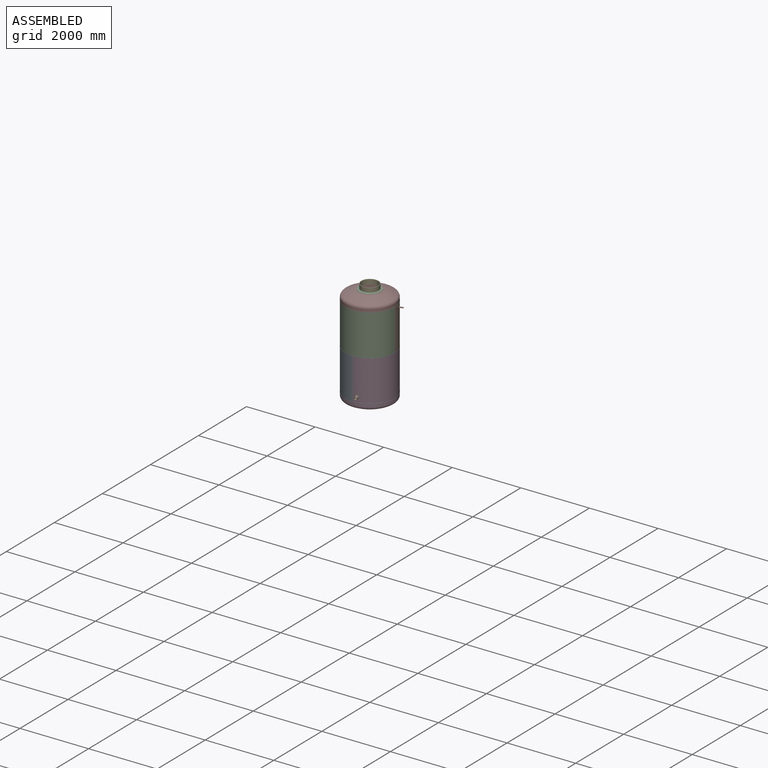
[diagram: assembled view]
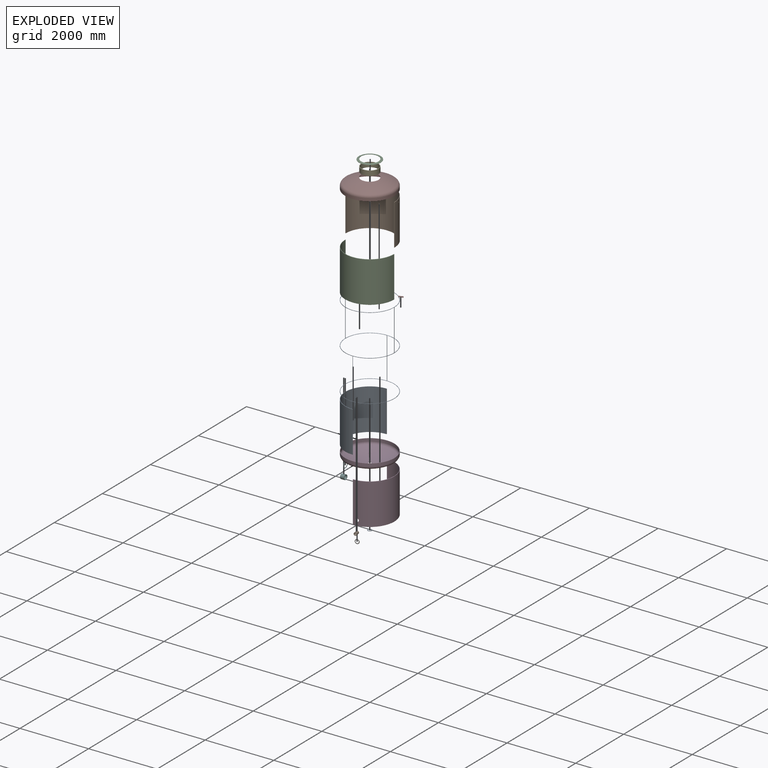
[diagram: exploded view]
GUIDED TOUR — MATED ASSEMBLY (Onshape document a2e5726da53a341ddfec77fb, AutoMate assembly a2e5726da53a341ddfec77fb_6807a62d554a02c38ec45782_9c263113b75342d83c172a72_default)

This assembly has 18 components, labeled P0..P17 below (a component is one placed occurrence of a part; the same part can appear more than once), held together by 17 mates. A mate is a constraint between two components; its type names the relative motion it leaves free:
  FASTENED — locks the two components together rigidly (no relative motion).
Axis/direction vectors are unit vectors and 'through' points are millimeter coordinates, both in the assembly's world frame.

MATES
  1. FASTENED "Fastened 3": P13 <-> P0, direction (0.000, 0.000, 1.000) through (-706.00, 0.03, -980.85) mm
  2. FASTENED "Fastened 14": P3 <-> P8, direction (0.000, 0.000, 1.000) through (0.00, 0.00, -1204.50) mm
  3. FASTENED "Fastened 9": P17 <-> P9, direction (0.000, 0.000, 1.000) through (-671.29, 218.63, 1101.51) mm
  4. FASTENED "Fastened 8": P12 <-> P9, direction (0.000, 0.000, 1.000) through (0.01, 706.00, 1069.85) mm
  5. FASTENED "Fastened 10": P7 <-> P9, direction (0.000, 0.000, 1.000) through (657.53, 257.09, 1101.51) mm
  6. FASTENED "Fastened 2": P5 <-> P0, direction (0.000, 0.000, 1.000) through (-716.00, 0.03, -980.85) mm
  7. FASTENED "Fastened 4": P11 <-> P8, direction (0.000, 0.000, 1.000) through (1.50, -706.00, -1.50) mm
  8. FASTENED "Fastened 7": P2 <-> P8, direction (0.000, 0.000, 1.000) through (706.00, -1.50, 1201.50) mm
  9. FASTENED "Fastened 15": P10 <-> P15, direction (0.000, 0.000, 1.000) through (0.00, 0.00, 1510.33) mm
  10. FASTENED "Fastened 1": P0 <-> P8, direction (0.000, 0.000, 1.000) through (-1.50, -706.00, -1.50) mm
  11. FASTENED "Fastened 6": P1 <-> P11, direction (0.000, 0.000, 1.000) through (166.13, -686.18, -1051.48) mm
  12. FASTENED "Fastened 11": P9 <-> P8, direction (0.000, 0.000, 1.000) through (706.00, 1.50, 1201.50) mm
  13. FASTENED "Fastened 16": P4 <-> P15, direction (0.000, 0.000, -1.000) through (0.00, 0.00, 1500.17) mm
  14. FASTENED "Fastened 17": P15 <-> P8, direction (0.000, 0.000, -1.000) through (0.00, 0.00, 1204.50) mm
  15. FASTENED "Fastened 5": P14 <-> P11, direction (0.000, 0.000, 1.000) through (167.87, -696.04, -1051.48) mm
  16. FASTENED "Fastened 13": P6 <-> P3, direction (0.000, 0.000, 1.000) through (0.00, 0.00, -1522.34) mm
  17. FASTENED "Fastened 12": P16 <-> P3, direction (0.000, 0.000, -1.000) through (0.00, 0.00, -1532.35) mm

ASSEMBLY ORDER
  1. P8 — the base component [order verified]
  2. P2 [order verified]
  3. P11 [order verified]
  4. P0 [order verified]
  5. P9 [order verified]
  6. P5 [order verified]
  7. P17 [order verified]
  8. P13 [order verified]
  9. P7 [order verified]
  10. P14 [order verified]
  11. P1 [order verified]
  12. P15 [order verified]
  13. P3 [order verified]
  14. P10 [order verified]
  15. P16 [order verified]
  16. P4 [order verified]
  17. P6 [order verified]
  18. P12 [order verified]
Order-tag legend:
  [order verified] — this step's position reverses a verified removal order: the component was checked to insert without passing through the ones already placed.

Of the 18 components, 1 carries the full construction recipe — the FeatureScript program that regenerates the part's solid from scratch; the rest are supplied as boundary geometry only.
Because this assembly has more than 12 components, the tour below covers the 12 most significant ones individually (every recipe-attached component first, then the largest by part volume), in assembly order; the remaining 6 are summarized together in a grouped section at the end.
Each toured component is shown spotlighted twice — in the assembled view, then in the exploded view, where a leader line traces a displaced component back to its assembled socket (saturated green if recipe-attached, orange if geometry-only; every other component desaturated gray) — followed by its recipe or geometry summary and the mates that hold it.
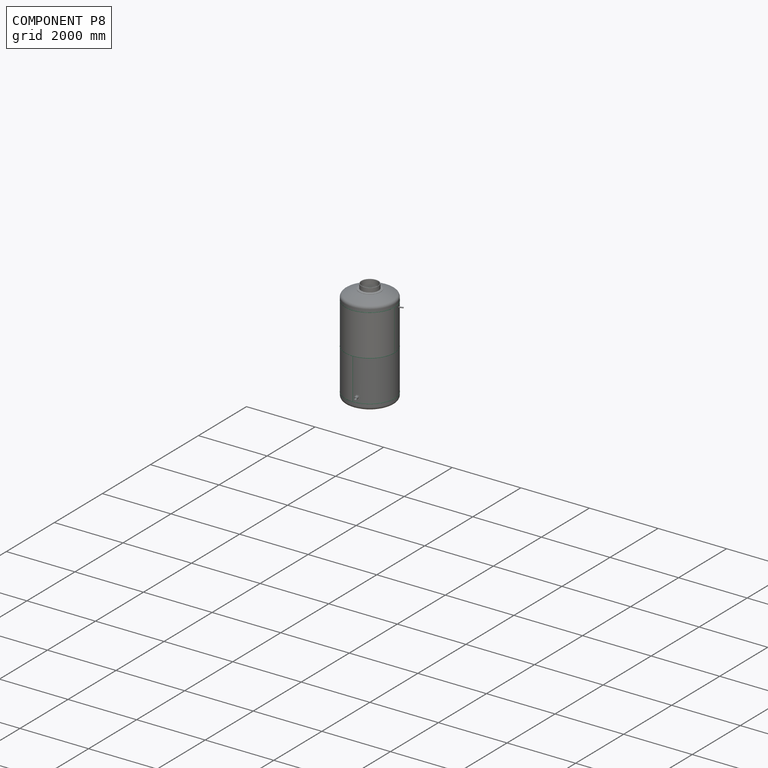
[diagram: component P8 — assembled]
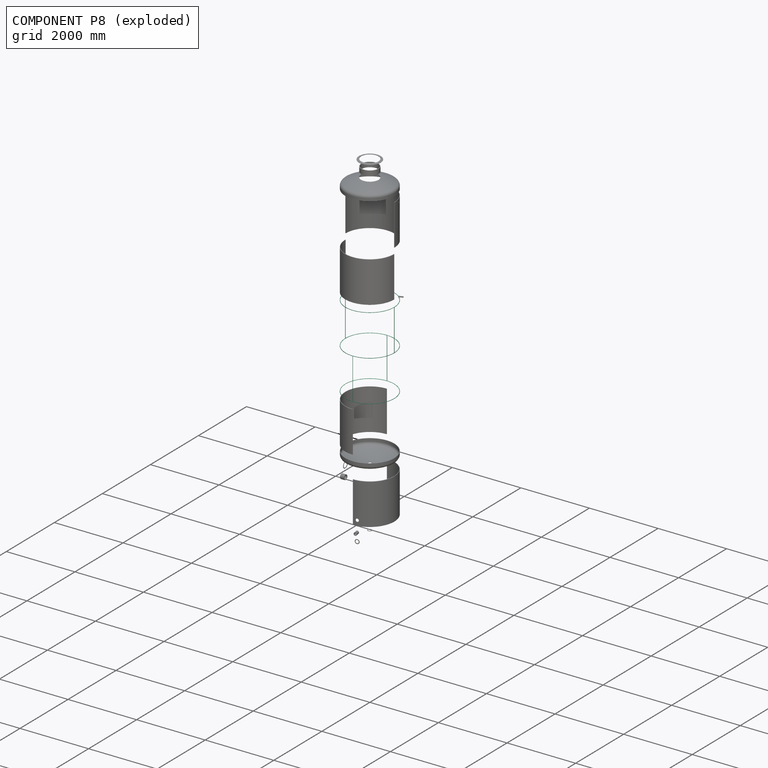
[diagram: component P8 — exploded]
COMPONENT P8 — recipe-attached (CADFS 00385852, mesh-verified: the recipe's output STEP matches this component's geometry to below the mesh-comparison resolution (tessellation chordal tolerance ~4.74 mm)).
Held by: FASTENED mate "Fastened 14" to P3; FASTENED mate "Fastened 4" to P11; FASTENED mate "Fastened 7" to P2; FASTENED mate "Fastened 1" to P0; FASTENED mate "Fastened 11" to P9; FASTENED mate "Fastened 17" to P15.
Construction recipe (FeatureScript — the CAD program that rebuilds this solid; sketch coordinates are in the units given by the * unit suffixes, e.g. mm):

FeatureScript 1511;
import(path : "onshape/std/geometry.fs", version : "1511.0");
import(path : "onshape/std/common.fs", version : "1511.0");
const mm = millimeter;
const VERTEX = EntityType.VERTEX;
const EDGE = EntityType.EDGE;
const FACE = EntityType.FACE;
const BODY = EntityType.BODY;
function v(x, y){return vector(x, y);}
function OD(order){return orderDisambiguation(order);}
function OSD(set){return originalSetDisambiguation(set);}
function TD(topology){return topologyDisambiguation(topology);}
function TDD(query){return trueDependencyDisambiguation(query);}
function sQuery(a, b, c) {return sketchEntityQuery(a, b, c);}

annotation { "Feature Type Name" : "Feature", "Feature Type Description" : "" }
export const myFeature = defineFeature(function(context is Context, id is Id, definition is map)
    precondition{}
    {
        {
            var Q0;
            Q0=qCreatedBy(makeId("Front.planeOp"),FACE);
            var sketch = newSketch(context, id + "F0", { "sketchPlane" : qUnion([Q0])});
            skLineSegment(sketch, "E0", {"start": v(0, 0) * mm, "end": v(716, 0) * mm, "construction": true});
            skLineSegment(sketch, "E1", {"start": v(0, 0) * mm, "end": v(0, 347.59) * mm, "construction": true});
            skLineSegment(sketch, "E2", {"start": v(706, 1.5) * mm, "end": v(706, -1.5) * mm});
            skLineSegment(sketch, "E3", {"start": v(706, 1.5) * mm, "end": v(709, 1.5) * mm});
            skLineSegment(sketch, "E4", {"start": v(709, 1.5) * mm, "end": v(716, 5.54) * mm});
            skLineSegment(sketch, "E5", {"start": v(716, 0) * mm, "end": v(716, 5.54) * mm, "construction": true});
            skLineSegment(sketch, "E6", {"start": v(716, 0) * mm, "end": v(719, 0) * mm, "construction": true});
            skLineSegment(sketch, "E7.MirrorCS", {"start": v(706, -1.5) * mm, "end": v(709, -1.5) * mm});
            skLineSegment(sketch, "E8.MirrorCS", {"start": v(709, -1.5) * mm, "end": v(716, -5.54) * mm});
            skArc(sketch, "E9", {"start": v(716, -5.54) * mm, "mid": v(719, 0) * mm, "end": v(716, 5.54) * mm});
            skLineSegment(sketch, "E10.0.1.0", {"start": v(709, 1204.5) * mm, "end": v(716, 1208.54) * mm});
            skLineSegment(sketch, "E10.0.1.1", {"start": v(706, 1204.5) * mm, "end": v(709, 1204.5) * mm});
            skLineSegment(sketch, "E10.0.1.2", {"start": v(706, 1204.5) * mm, "end": v(706, 1201.5) * mm});
            skLineSegment(sketch, "E10.0.1.3", {"start": v(706, 1201.5) * mm, "end": v(709, 1201.5) * mm});
            skLineSegment(sketch, "E10.0.1.4", {"start": v(709, 1201.5) * mm, "end": v(716, 1197.46) * mm});
            skArc(sketch, "E10.0.1.5", {"start": v(716, 1197.46) * mm, "mid": v(719, 1203) * mm, "end": v(716, 1208.54) * mm});
            skLineSegment(sketch, "E10.direction1", {"start": v(709, 1.5) * mm, "end": v(734, 1.5) * mm, "construction": true});
            skLineSegment(sketch, "E10.direction2", {"start": v(709, 1.5) * mm, "end": v(709, 1204.5) * mm, "construction": true});
            skLineSegment(sketch, "E11.MirrorCS", {"start": v(706, -1201.5) * mm, "end": v(709, -1201.5) * mm});
            skLineSegment(sketch, "E12.MirrorCS", {"start": v(709, -1201.5) * mm, "end": v(716, -1197.46) * mm});
            skLineSegment(sketch, "E13.MirrorCS", {"start": v(706, -1204.5) * mm, "end": v(709, -1204.5) * mm});
            skLineSegment(sketch, "E14.MirrorCS", {"start": v(706, -1204.5) * mm, "end": v(706, -1201.5) * mm});
            skLineSegment(sketch, "E15.MirrorCS", {"start": v(709, -1204.5) * mm, "end": v(716, -1208.54) * mm});
            skArc(sketch, "E16.MirrorCS", {"start": v(716, -1197.46) * mm, "mid": v(719, -1203) * mm, "end": v(716, -1208.54) * mm});
            skSolve(sketch);
        }
        {
            var Q0;
            Q0 = qSketchRegion(id + "F0", true);
            var Q1;
            Q1=sQuery(id+"F0.wireOp",EDGE,"E1");
            revolve(context, id + "F1", {"entities" : qUnion([Q0]), "axis" : qUnion([Q1]), "revolveType" : RevolveType.FULL});
        }
        {
            var Q0;
            Q0=qCreatedBy(makeId("Top.planeOp"),FACE);
            var sketch = newSketch(context, id + "F2", { "sketchPlane" : qUnion([Q0])});
            skLineSegment(sketch, "E17", {"start": v(0, 0) * mm, "end": v(0, 716) * mm, "construction": true});
            skLineSegment(sketch, "E18", {"start": v(-1.5, 706) * mm, "end": v(1.5, 706) * mm});
            skLineSegment(sketch, "E19", {"start": v(-1.5, 706) * mm, "end": v(-1.5, 709) * mm});
            skLineSegment(sketch, "E20", {"start": v(-1.5, 709) * mm, "end": v(-5.54, 716) * mm});
            skLineSegment(sketch, "E21", {"start": v(0, 716) * mm, "end": v(-5.54, 716) * mm, "construction": true});
            skLineSegment(sketch, "E22.MirrorCS", {"start": v(1.5, 706) * mm, "end": v(1.5, 709) * mm});
            skLineSegment(sketch, "E23.MirrorCS", {"start": v(1.5, 709) * mm, "end": v(5.54, 716) * mm});
            skLineSegment(sketch, "E24", {"start": v(0, 716) * mm, "end": v(0, 719) * mm, "construction": true});
            skArc(sketch, "E25", {"start": v(5.54, 716) * mm, "mid": v(0, 719) * mm, "end": v(-5.54, 716) * mm});
            skArc(sketch, "E26.1.0", {"start": v(-716, 5.54) * mm, "mid": v(-719, 0) * mm, "end": v(-716, -5.54) * mm});
            skLineSegment(sketch, "E26.1.1", {"start": v(-709, -1.5) * mm, "end": v(-716, -5.54) * mm});
            skLineSegment(sketch, "E26.1.2", {"start": v(-709, 1.5) * mm, "end": v(-716, 5.54) * mm});
            skLineSegment(sketch, "E26.1.3", {"start": v(-706, 1.5) * mm, "end": v(-709, 1.5) * mm});
            skLineSegment(sketch, "E26.1.4", {"start": v(-706, -1.5) * mm, "end": v(-709, -1.5) * mm});
            skLineSegment(sketch, "E26.1.5", {"start": v(-706, -1.5) * mm, "end": v(-706, 1.5) * mm});
            skArc(sketch, "E26.2.0", {"start": v(-5.54, -716) * mm, "mid": v(0, -719) * mm, "end": v(5.54, -716) * mm});
            skLineSegment(sketch, "E26.2.1", {"start": v(1.5, -709) * mm, "end": v(5.54, -716) * mm});
            skLineSegment(sketch, "E26.2.2", {"start": v(-1.5, -709) * mm, "end": v(-5.54, -716) * mm});
            skLineSegment(sketch, "E26.2.3", {"start": v(-1.5, -706) * mm, "end": v(-1.5, -709) * mm});
            skLineSegment(sketch, "E26.2.4", {"start": v(1.5, -706) * mm, "end": v(1.5, -709) * mm});
            skLineSegment(sketch, "E26.2.5", {"start": v(1.5, -706) * mm, "end": v(-1.5, -706) * mm});
            skArc(sketch, "E26.3.0", {"start": v(716, -5.54) * mm, "mid": v(719, 0) * mm, "end": v(716, 5.54) * mm});
            skLineSegment(sketch, "E26.3.1", {"start": v(709, 1.5) * mm, "end": v(716, 5.54) * mm});
            skLineSegment(sketch, "E26.3.2", {"start": v(709, -1.5) * mm, "end": v(716, -5.54) * mm});
            skLineSegment(sketch, "E26.3.3", {"start": v(706, -1.5) * mm, "end": v(709, -1.5) * mm});
            skLineSegment(sketch, "E26.3.4", {"start": v(706, 1.5) * mm, "end": v(709, 1.5) * mm});
            skLineSegment(sketch, "E26.3.5", {"start": v(706, 1.5) * mm, "end": v(706, -1.5) * mm});
            skPoint(sketch, "E26.center", {"position": v(0, 0) * mm});
            skSolve(sketch);
        }
        {
            var Q0;
            Q0=makeQuery(id+"F2.imprint","IMPRINT",FACE,{"disambiguationData":[TD([[makeQuery(id+"F2.imprint","IMPRINT",EDGE,{"derivedFrom":sQuery(id+"F2.wireOp",EDGE,"E26.2.0")}),1.0]])]});
            var Q1;
            Q1=makeQuery(id+"F2.imprint","IMPRINT",FACE,{"disambiguationData":[TD([[makeQuery(id+"F2.imprint","IMPRINT",EDGE,{"derivedFrom":sQuery(id+"F2.wireOp",EDGE,"E18")}),1.0]])]});
            extrude(context, id + "F3", {"entities" : qUnion([Q0, Q1]), "operationType" : NewBodyOperationType.ADD, "oppositeDirection" : true, "depth" : 1203 * mm});
        }
        {
            var Q0;
            Q0=makeQuery(id+"F2.imprint","IMPRINT",FACE,{"disambiguationData":[TD([[makeQuery(id+"F2.imprint","IMPRINT",EDGE,{"derivedFrom":sQuery(id+"F2.wireOp",EDGE,"E26.1.0")}),1.0]])]});
            var Q1;
            Q1=makeQuery(id+"F2.imprint","IMPRINT",FACE,{"disambiguationData":[TD([[makeQuery(id+"F2.imprint","IMPRINT",EDGE,{"derivedFrom":sQuery(id+"F2.wireOp",EDGE,"E26.3.0")}),1.0]])]});
            extrude(context, id + "F4", {"entities" : qUnion([Q0, Q1]), "operationType" : NewBodyOperationType.ADD, "depth" : 1203 * mm});
        }
    });
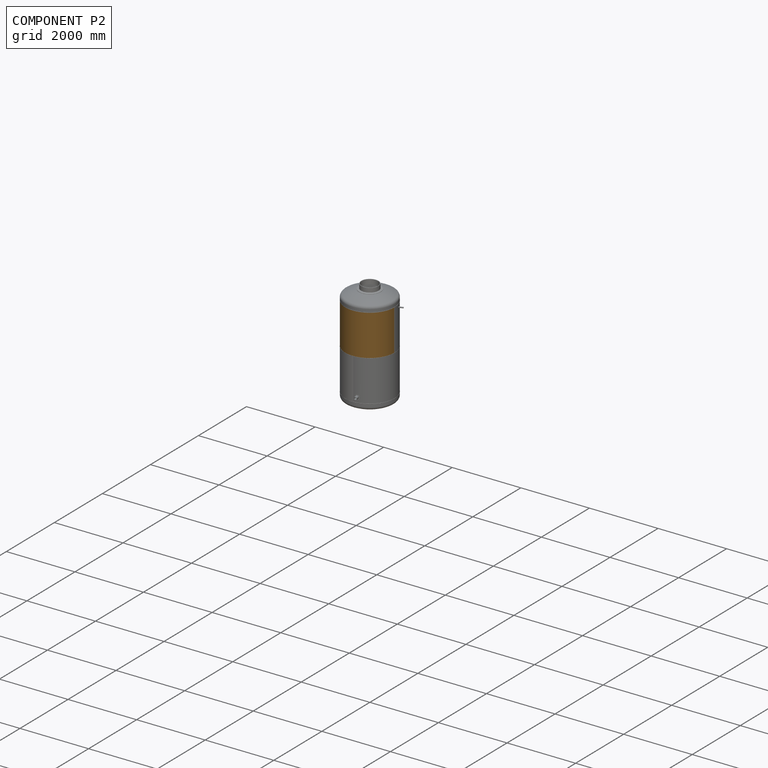
[diagram: component P2 — assembled]
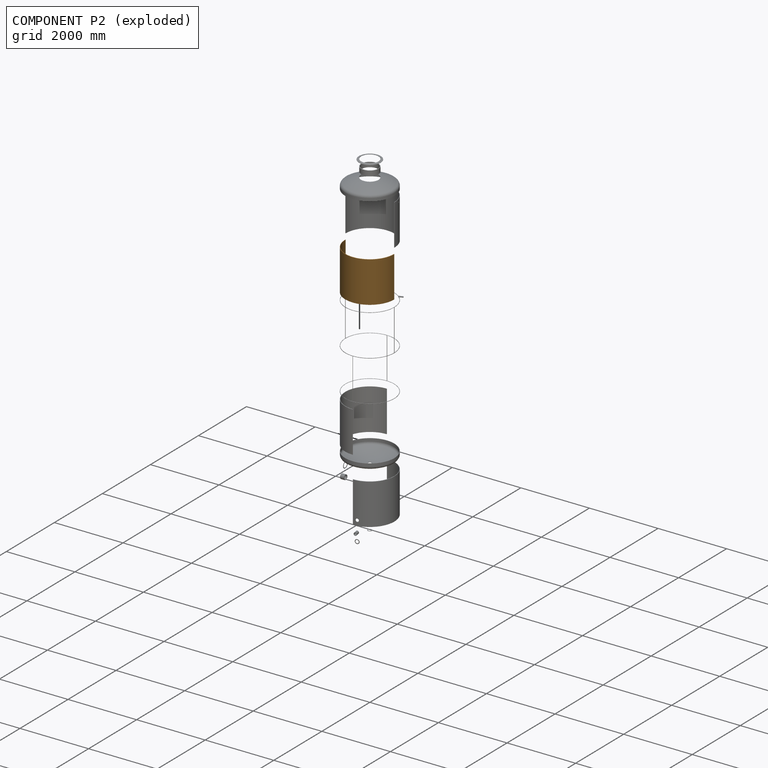
[diagram: component P2 — exploded]
COMPONENT P2 — geometry summary (no construction recipe available for this part):
  bounding box: 1432.0 x 1200.0 x 714.5 mm
  B-rep topology: 1 solid, 10 faces, 40 edges
  volume: 26669427 mm^3 (2% of its bounding box)
  symmetry: 2-fold rotationally symmetric about the y axis; mirror-symmetric across its x mid-plane, z mid-plane
Held by: FASTENED mate "Fastened 7" to P8.
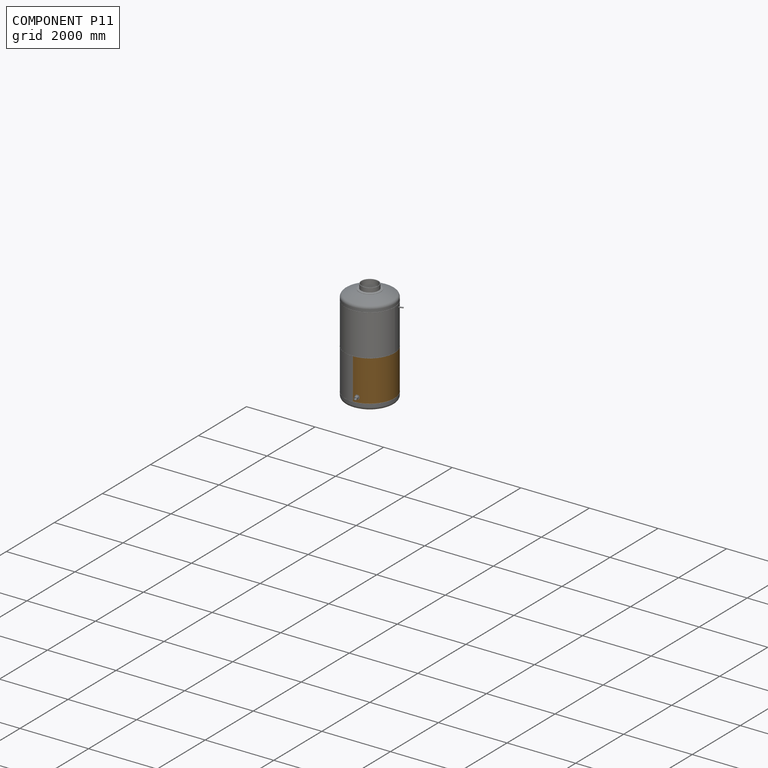
[diagram: component P11 — assembled]
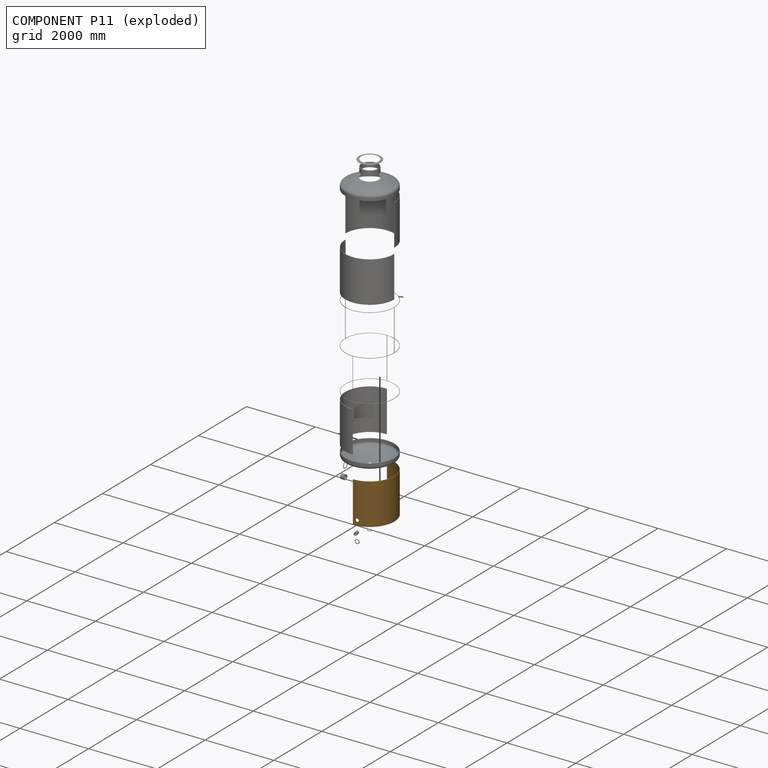
[diagram: component P11 — exploded]
COMPONENT P11 — geometry summary (no construction recipe available for this part):
  bounding box: 1432.0 x 1200.0 x 714.5 mm
  B-rep topology: 1 solid, 11 faces, 46 edges
  volume: 26606642 mm^3 (2% of its bounding box)
  symmetry: 2-fold rotationally symmetric about the x axis; mirror-symmetric across its y mid-plane, z mid-plane
Held by: FASTENED mate "Fastened 4" to P8; FASTENED mate "Fastened 6" to P1; FASTENED mate "Fastened 5" to P14.
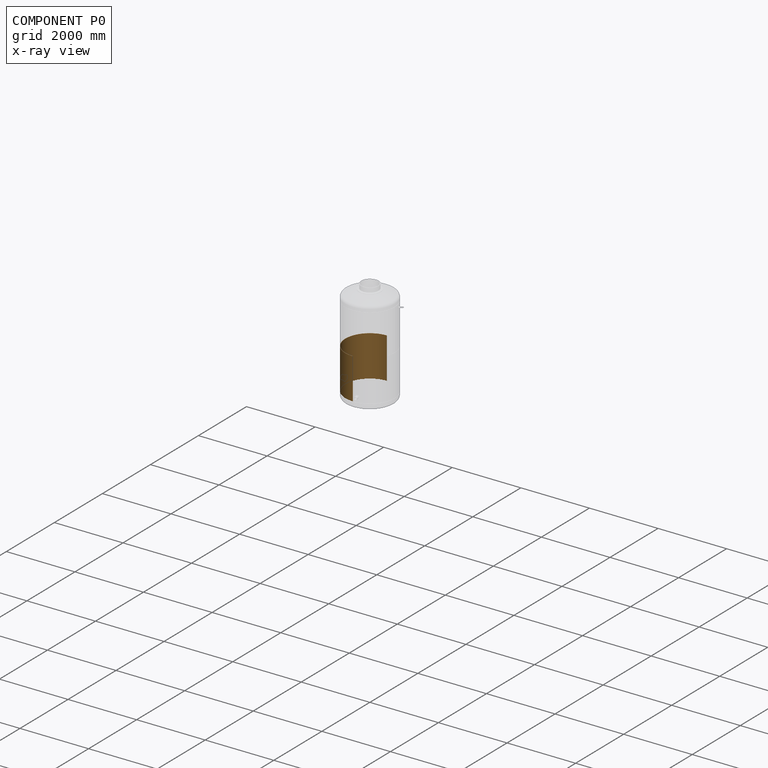
[diagram: component P0 — x-ray view]
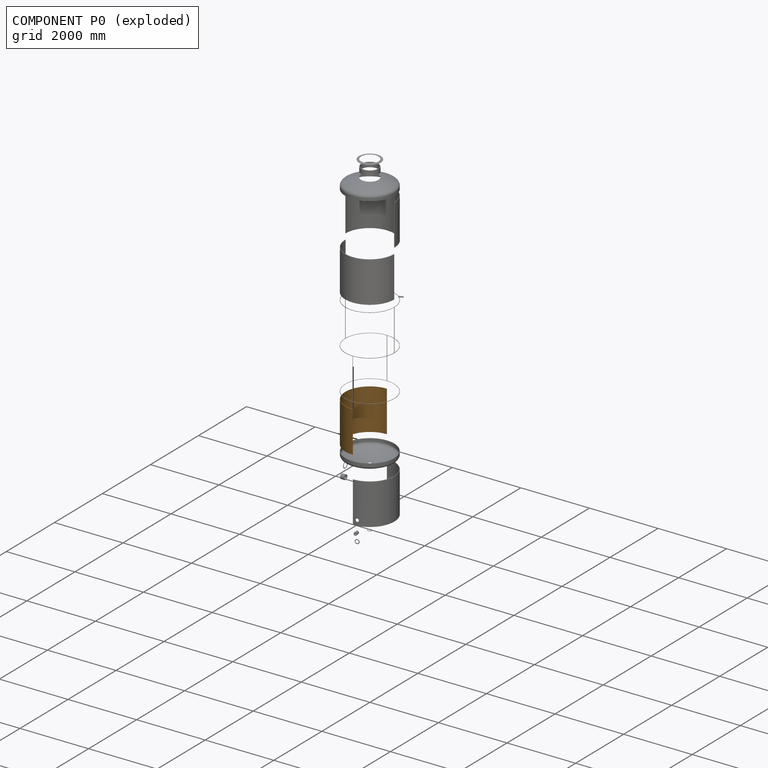
[diagram: component P0 — exploded]
COMPONENT P0 — geometry summary (no construction recipe available for this part):
  bounding box: 1432.0 x 1200.0 x 714.5 mm
  B-rep topology: 1 solid, 11 faces, 46 edges
  volume: 26512409 mm^3 (2% of its bounding box)
  symmetry: mirror-symmetric across its y mid-plane
Held by: FASTENED mate "Fastened 3" to P13; FASTENED mate "Fastened 2" to P5; FASTENED mate "Fastened 1" to P8.
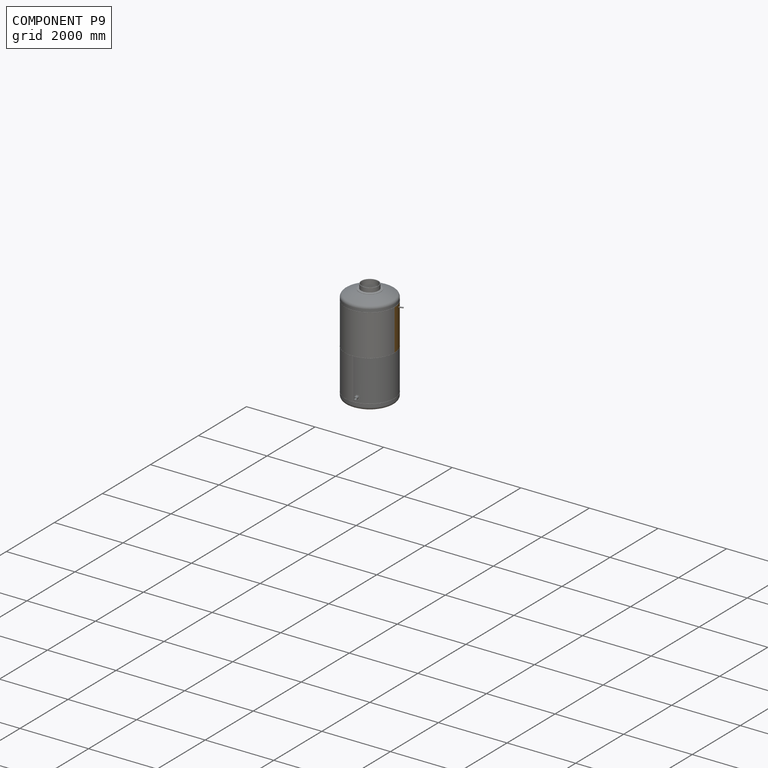
[diagram: component P9 — assembled]
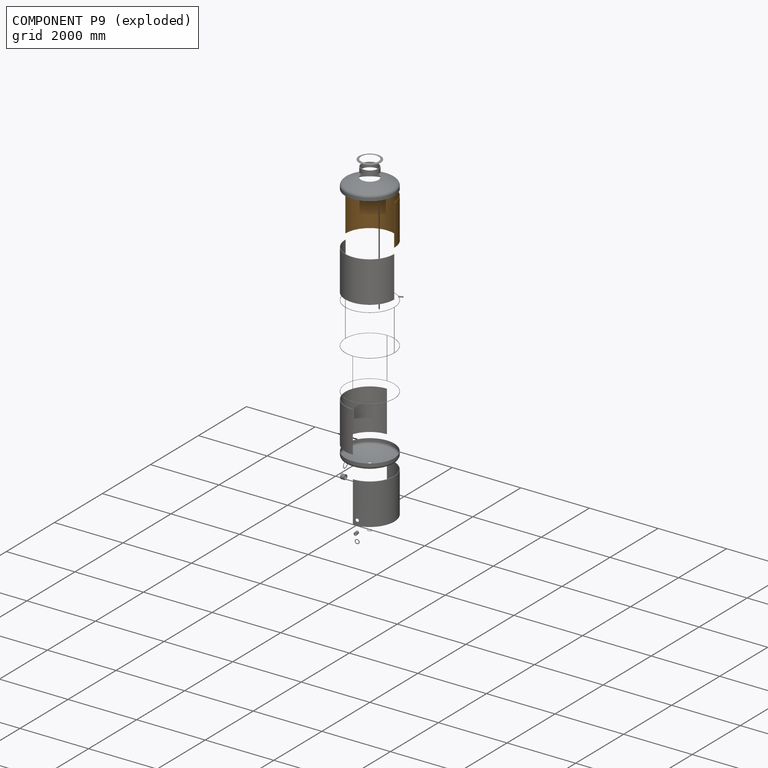
[diagram: component P9 — exploded]
COMPONENT P9 — geometry summary (no construction recipe available for this part):
  bounding box: 1432.0 x 1200.0 x 714.5 mm
  B-rep topology: 1 solid, 13 faces, 58 edges
  volume: 26610401 mm^3 (2% of its bounding box)
  symmetry: 2-fold rotationally symmetric about the y axis; mirror-symmetric across its x mid-plane, z mid-plane
Held by: FASTENED mate "Fastened 9" to P17; FASTENED mate "Fastened 8" to P12; FASTENED mate "Fastened 10" to P7; FASTENED mate "Fastened 11" to P8.
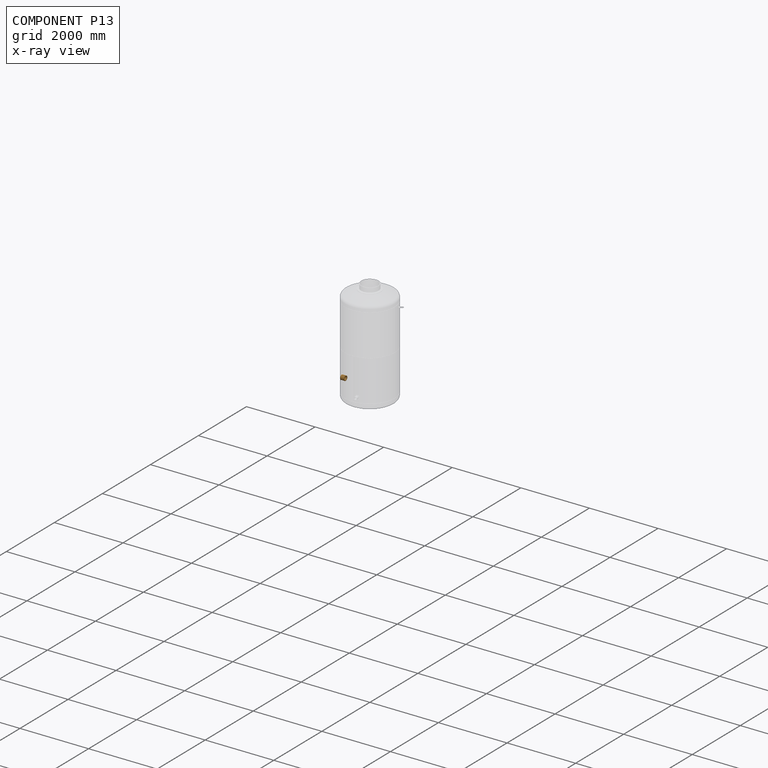
[diagram: component P13 — x-ray view]
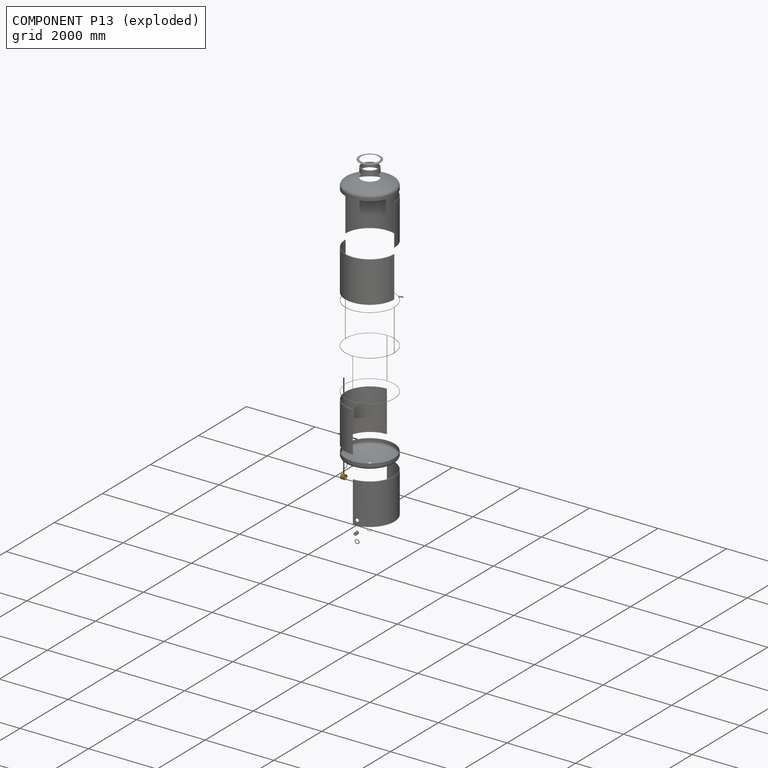
[diagram: component P13 — exploded]
COMPONENT P13 — geometry summary (no construction recipe available for this part):
  bounding box: 141.3 x 141.3 x 119.5 mm
  B-rep topology: 1 solid, 4 faces, 16 edges
  volume: 734656 mm^3 (31% of its bounding box)
  symmetry: 2-fold rotationally symmetric about the x axis; mirror-symmetric across its y mid-plane, z mid-plane
Held by: FASTENED mate "Fastened 3" to P0.
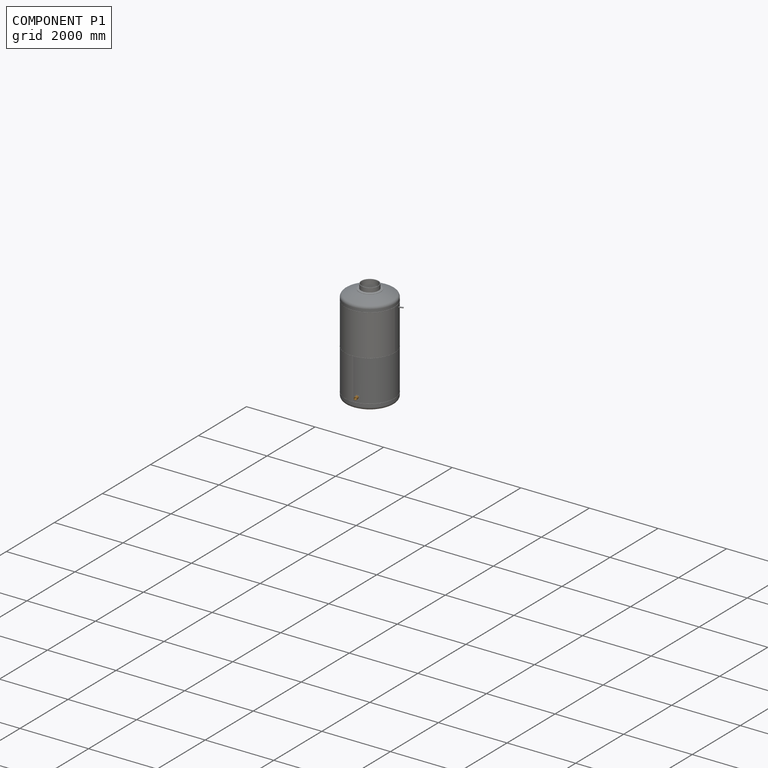
[diagram: component P1 — assembled]
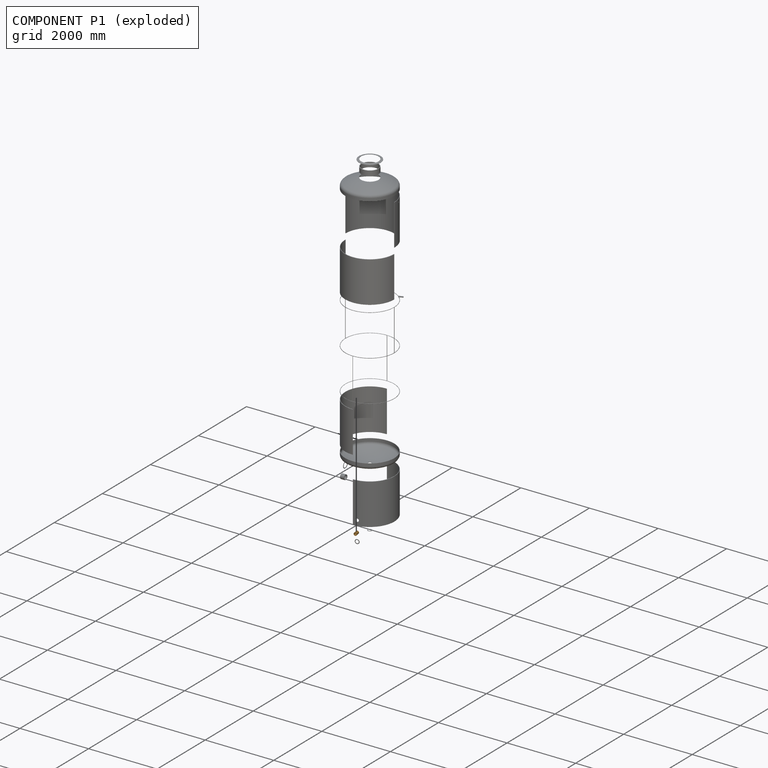
[diagram: component P1 — exploded]
COMPONENT P1 — geometry summary (no construction recipe available for this part):
  bounding box: 131.1 x 107.9 x 88.9 mm
  B-rep topology: 1 solid, 4 faces, 12 edges
  volume: 316909 mm^3 (25% of its bounding box)
  symmetry: mirror-symmetric across its z mid-plane
Held by: FASTENED mate "Fastened 6" to P11.
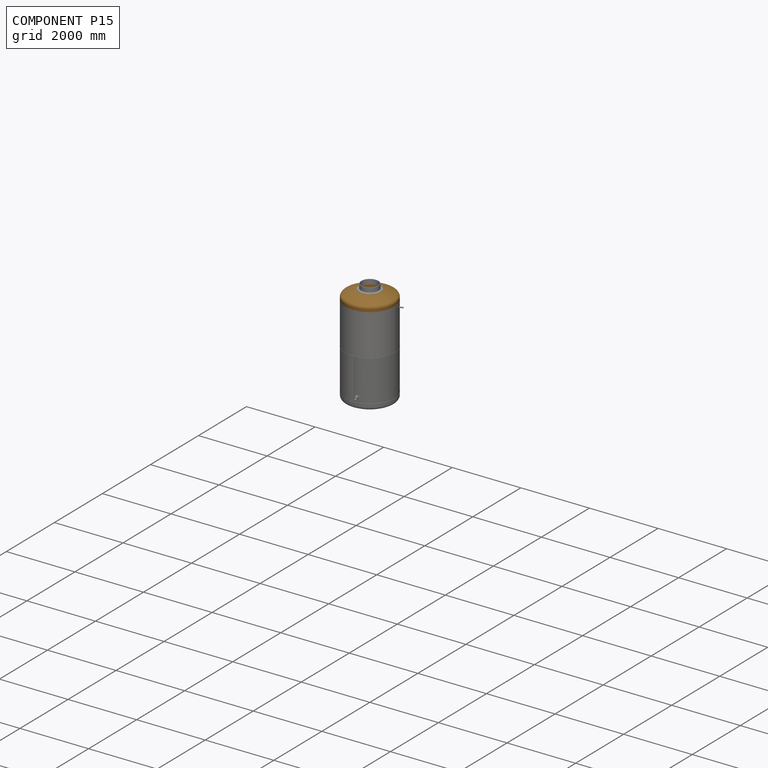
[diagram: component P15 — assembled]
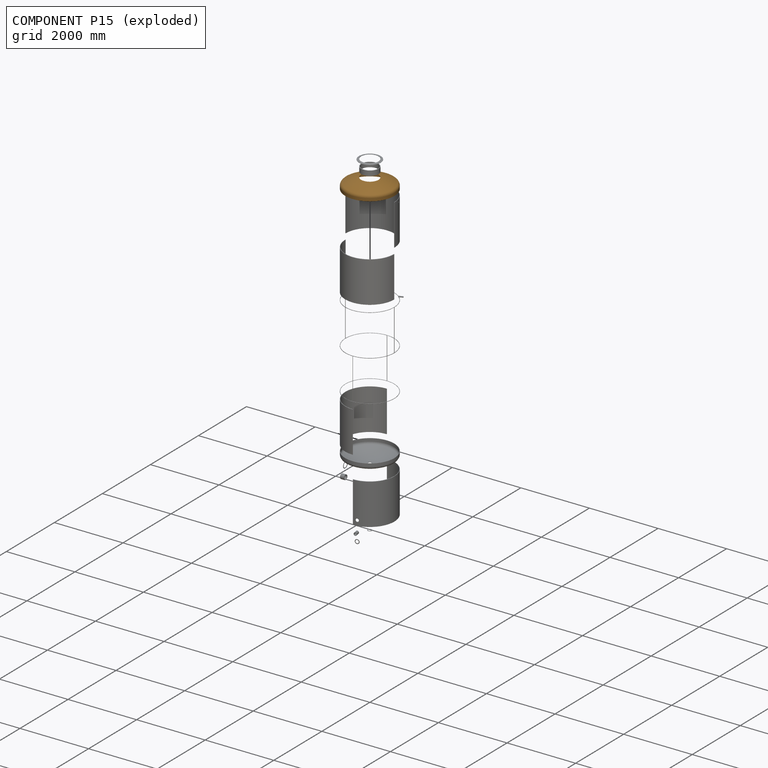
[diagram: component P15 — exploded]
COMPONENT P15 — geometry summary (no construction recipe available for this part):
  bounding box: 1550.0 x 1550.0 x 305.8 mm
  B-rep topology: 1 solid, 9 faces, 38 edges
  volume: 20455013 mm^3 (3% of its bounding box)
  symmetry: revolution-symmetric about the z axis through its bounding-box center; mirror-symmetric across its x mid-plane, y mid-plane
Held by: FASTENED mate "Fastened 15" to P10; FASTENED mate "Fastened 16" to P4; FASTENED mate "Fastened 17" to P8.
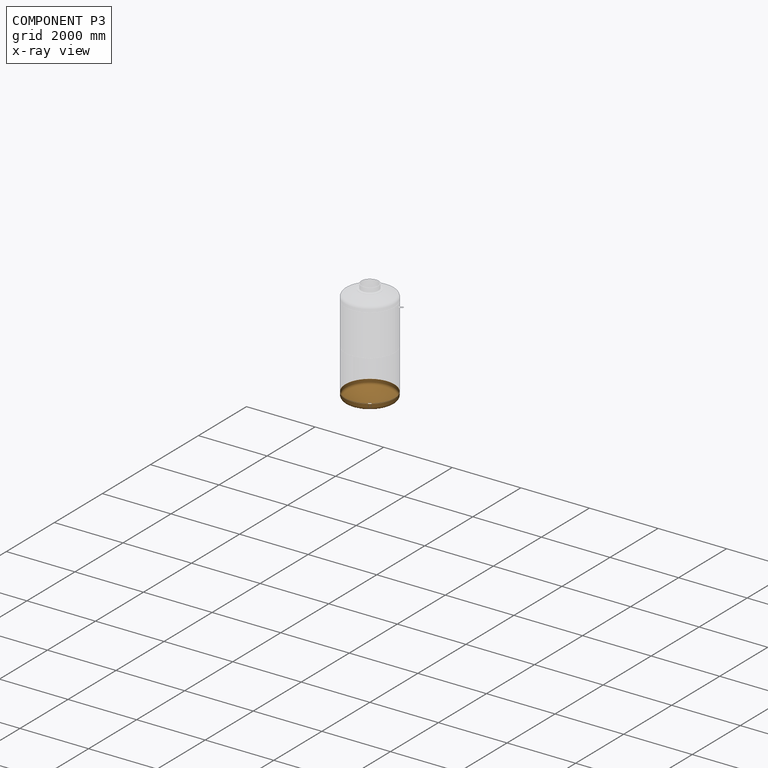
[diagram: component P3 — x-ray view]
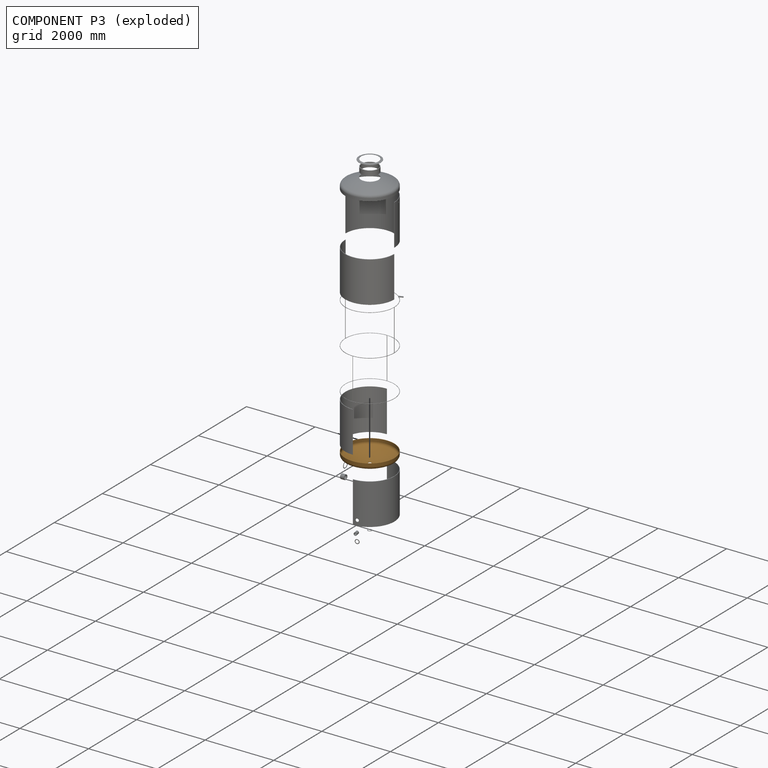
[diagram: component P3 — exploded]
COMPONENT P3 — geometry summary (no construction recipe available for this part):
  bounding box: 1550.0 x 1550.0 x 327.8 mm
  B-rep topology: 1 solid, 9 faces, 38 edges
  volume: 22436070 mm^3 (3% of its bounding box)
  symmetry: revolution-symmetric about the z axis through its bounding-box center; mirror-symmetric across its x mid-plane, y mid-plane
Held by: FASTENED mate "Fastened 14" to P8; FASTENED mate "Fastened 13" to P6; FASTENED mate "Fastened 12" to P16.
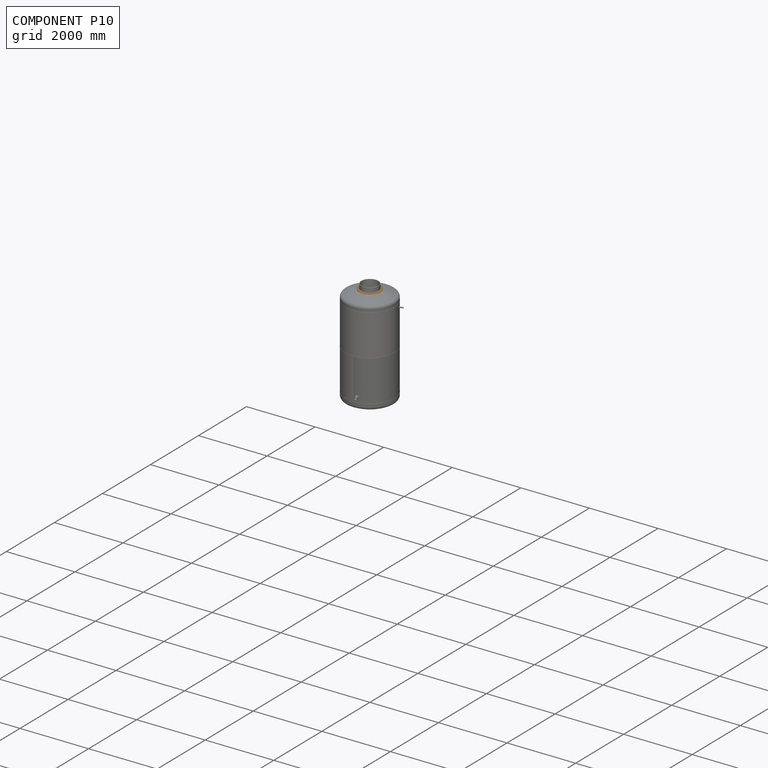
[diagram: component P10 — assembled]
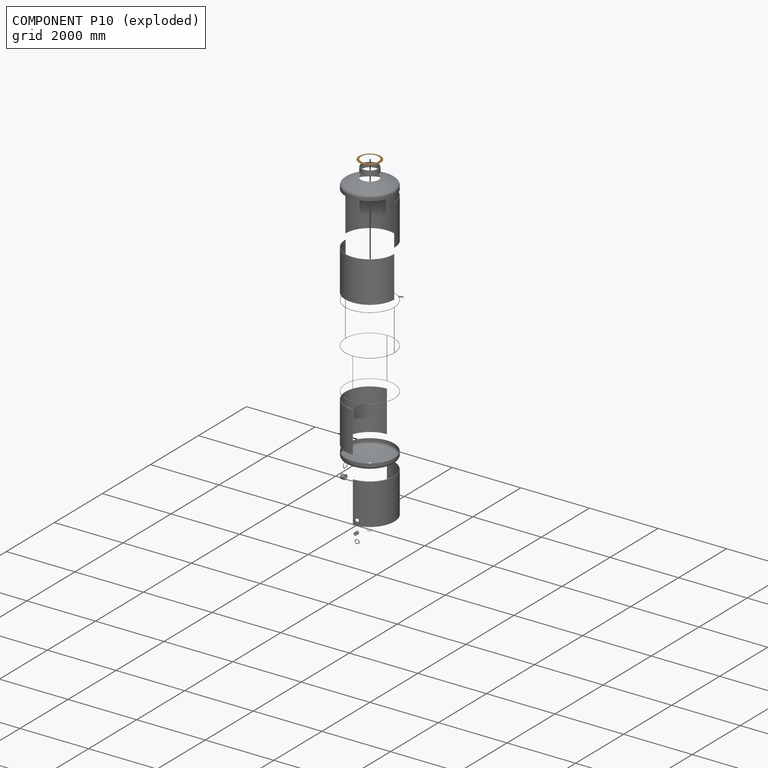
[diagram: component P10 — exploded]
COMPONENT P10 — geometry summary (no construction recipe available for this part):
  bounding box: 635.0 x 635.0 x 19.0 mm
  B-rep topology: 1 solid, 4 faces, 16 edges
  volume: 698220 mm^3 (9% of its bounding box)
  symmetry: revolution-symmetric about the z axis through its bounding-box center; mirror-symmetric across its x mid-plane, y mid-plane
Held by: FASTENED mate "Fastened 15" to P15.
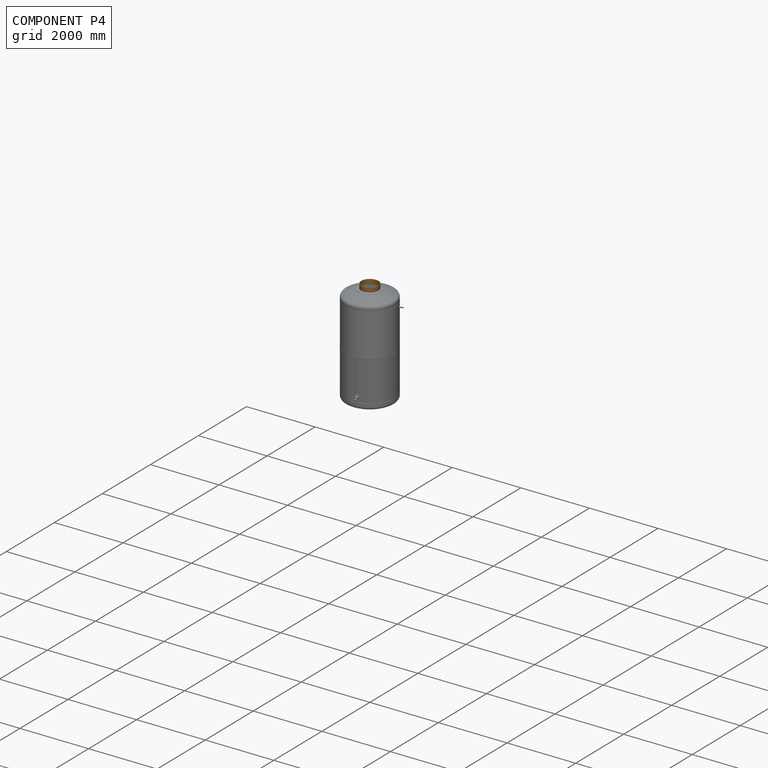
[diagram: component P4 — assembled]
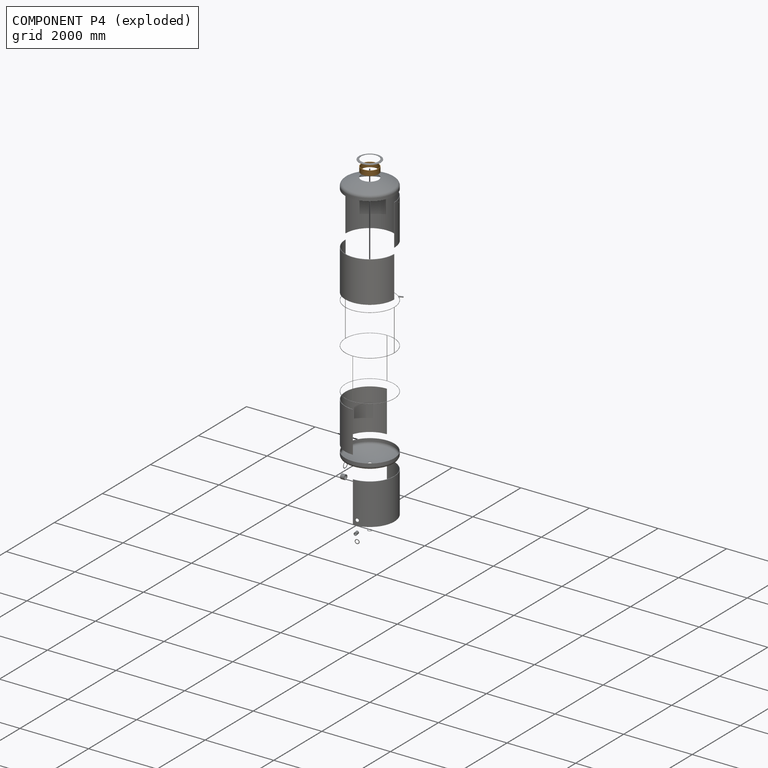
[diagram: component P4 — exploded]
COMPONENT P4 — geometry summary (no construction recipe available for this part):
  bounding box: 508.0 x 508.0 x 140.3 mm
  B-rep topology: 1 solid, 4 faces, 18 edges
  volume: 3248065 mm^3 (9% of its bounding box)
  symmetry: 2-fold rotationally symmetric about the x axis; 2-fold rotationally symmetric about the y axis; revolution-symmetric about the z axis through its bounding-box center; mirror-symmetric across its x mid-plane, y mid-plane, z mid-plane
Held by: FASTENED mate "Fastened 16" to P15.
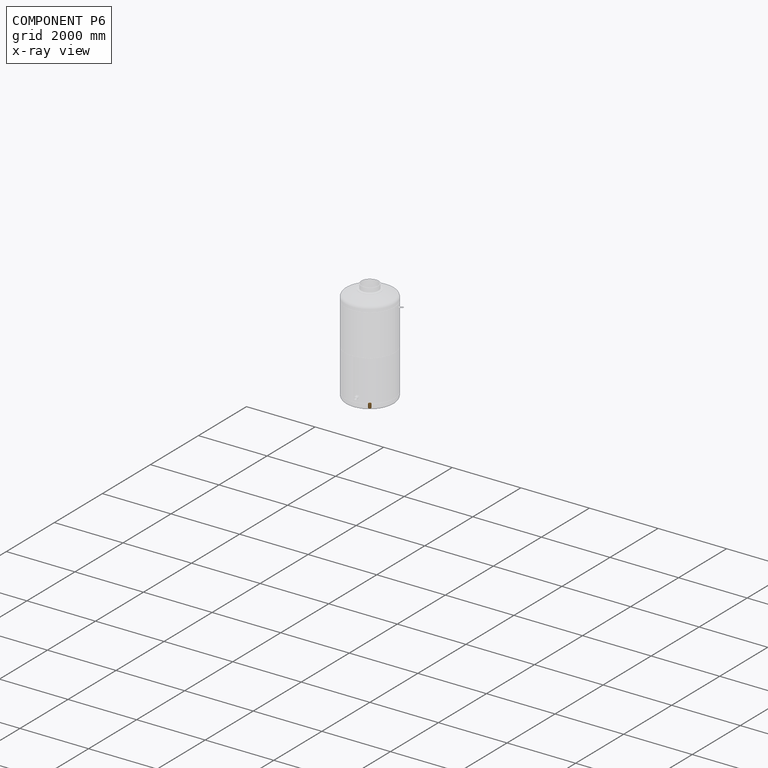
[diagram: component P6 — x-ray view]
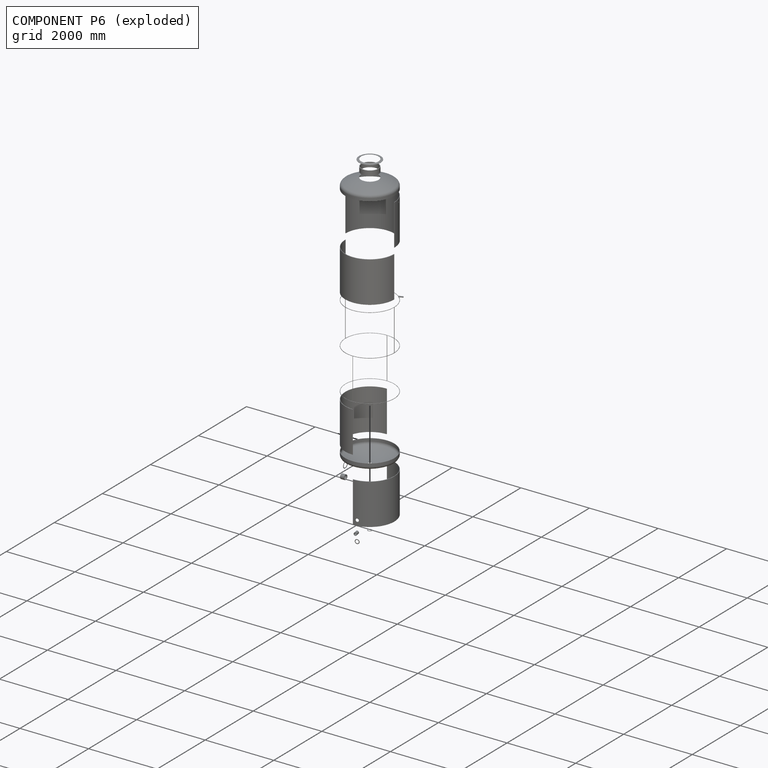
[diagram: component P6 — exploded]
COMPONENT P6 — geometry summary (no construction recipe available for this part):
  bounding box: 118.2 x 88.9 x 88.9 mm
  B-rep topology: 1 solid, 4 faces, 14 edges
  volume: 320886 mm^3 (34% of its bounding box)
  symmetry: 2-fold rotationally symmetric about the x axis; 2-fold rotationally symmetric about the y axis; revolution-symmetric about the z axis through its bounding-box center; mirror-symmetric across its x mid-plane, y mid-plane, z mid-plane
Held by: FASTENED mate "Fastened 13" to P3.
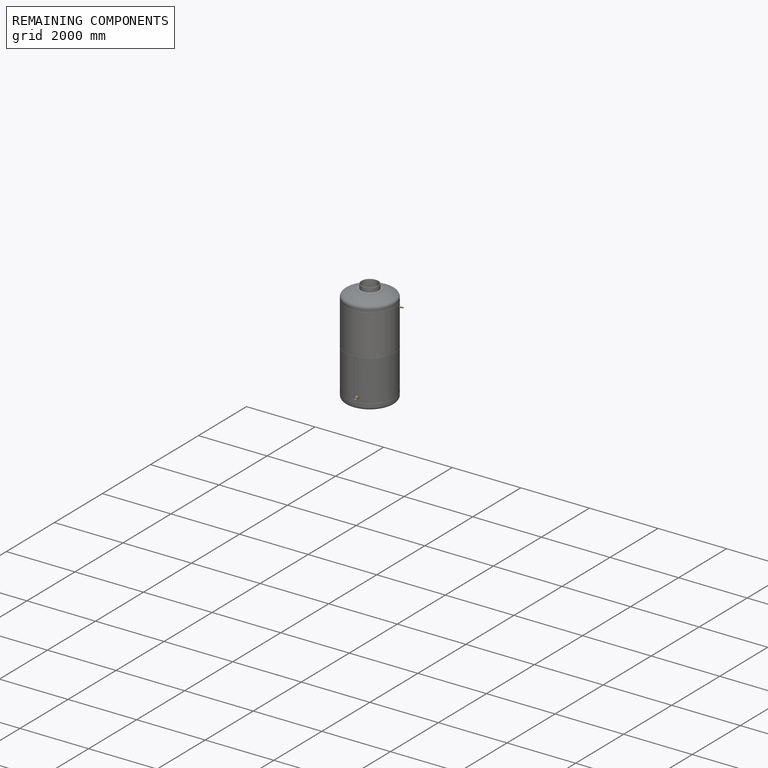
[diagram: remaining components — assembled]
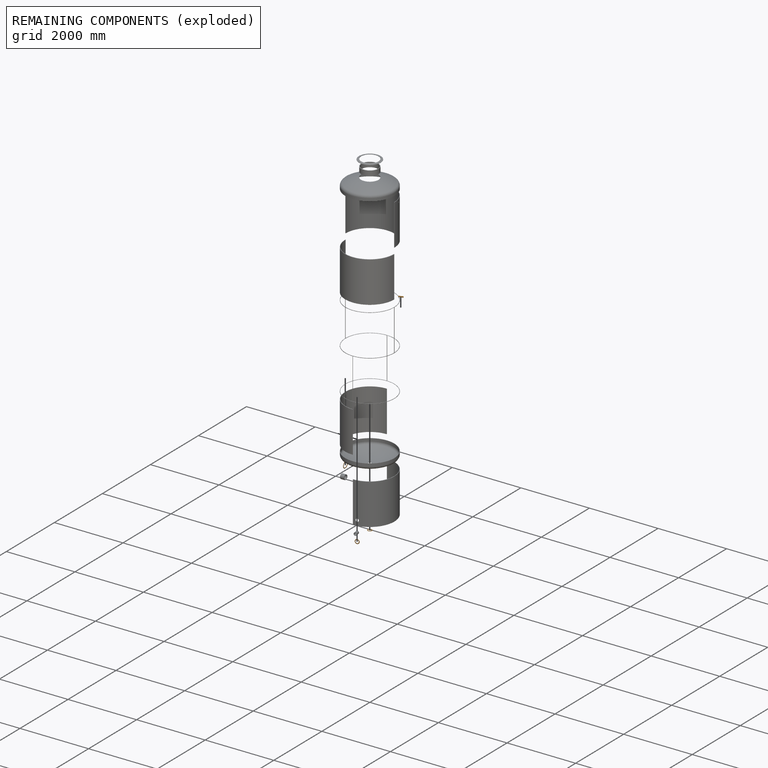
[diagram: remaining components — exploded]
REMAINING COMPONENTS (grouped) — the 6 components below fall outside the per-component tour by the significance rule stated above; both spotlight views highlight the whole group.
  P5: bounding box 177.8 x 177.8 x 11.5 mm, volume 55062 mm^3. Held by: FASTENED mate "Fastened 2" to P0.
  P17: bounding box 136.2 x 89.0 x 48.3 mm, volume 117394 mm^3. Held by: FASTENED mate "Fastened 9" to P9.
  P7: bounding box 131.0 x 74.9 x 33.4 mm, volume 68567 mm^3. Held by: FASTENED mate "Fastened 10" to P9.
  P14: bounding box 127.0 x 126.6 x 30.7 mm, volume 38794 mm^3. Held by: FASTENED mate "Fastened 5" to P11.
  P16: bounding box 127.0 x 127.0 x 6.7 mm, volume 38791 mm^3. Held by: FASTENED mate "Fastened 12" to P3.
  P12: bounding box 127.7 x 63.3 x 63.3 mm, volume 190664 mm^3. Held by: FASTENED mate "Fastened 8" to P9.
PROVENANCE & LICENSES
Assembly (occurrences, transforms, mates, per-part STEP geometry): AutoMate dataset, Zenodo record 7776208, CC0.
Construction recipes: CADFS (HuggingFace VladPyatov/CADFS, CC-BY-4.0, layered over the ABC dataset), FeatureScript reconstruction programs keyed by ABC model id.
Join: ABC meta listings map ABC model id -> Onshape documentId; within a shared document, parts are matched by geometric signature (bounding-box dims + volume at 0.1% relative tolerance, exact B-rep face/solid counts).
Verification: 1 of this assembly's 18 components carries a recipe attachment, and every attachment is mesh-verified: the CADFS STEP and the AutoMate member STEP were compared as meshes in their shared local frame (symmetric sampled-point-to-mesh distance); worst across the 1 attachment: below the mesh-comparison resolution (tessellation chordal tolerance ~4.74 mm) on a 3159 mm part.
Renders: orthographic iso camera (az 35 / el 25); the floor grid conveys scale (grid pitch printed in each image; no ruler). In the exploded view each component is displaced by its stored offset vector: the offsets alone carry the explosion direction (mate normal/axis signs are not orientation cues and do not encode it), and separation distances are assigned per mate-chain, not proportionally to assembly-order depth.
